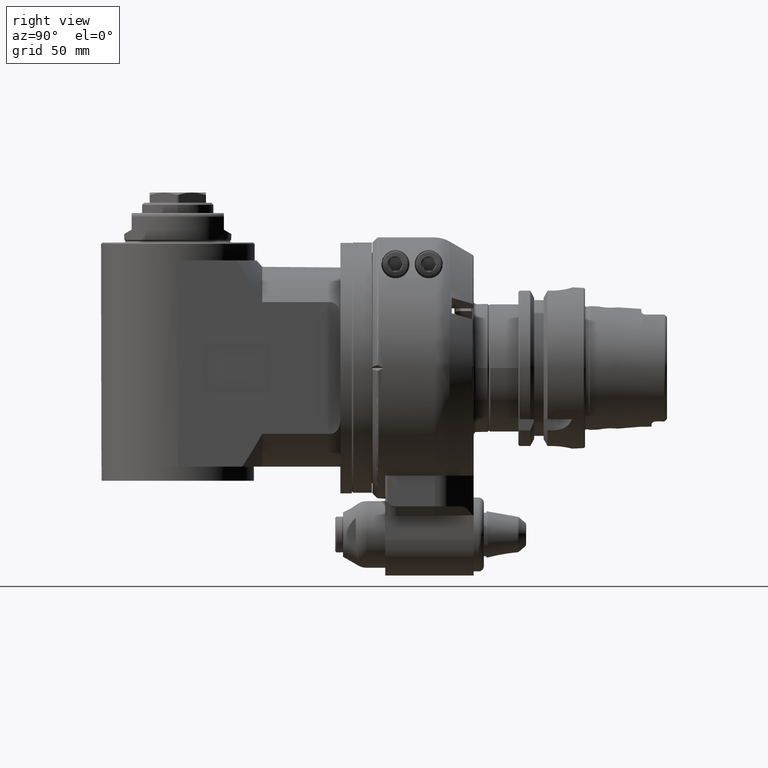
[diagram: clean part render]
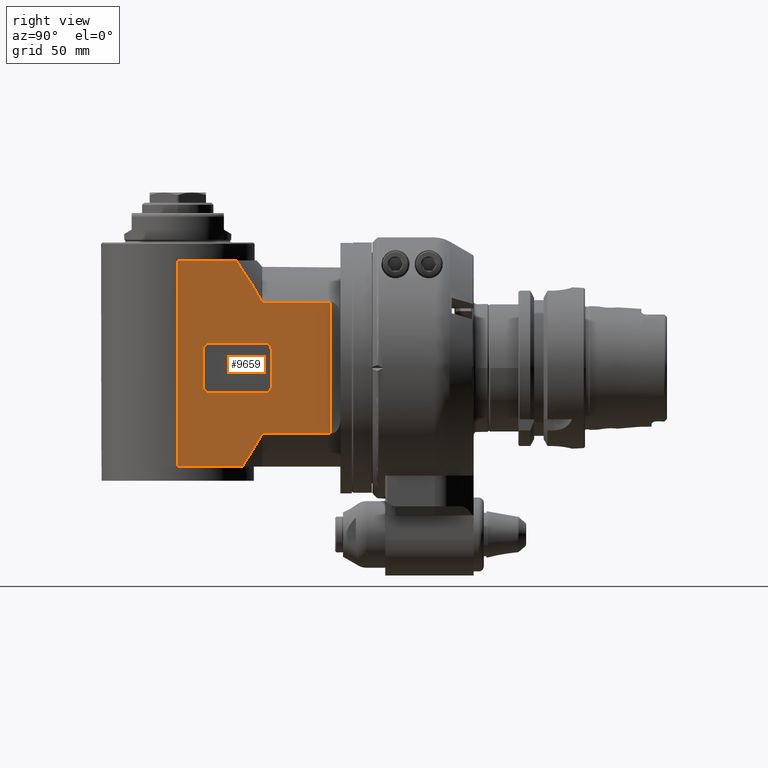
[diagram: same view with one face highlighted and labeled with its STEP entity id]
A machine part, right view. The second image highlights one B-rep face of the part: STEP entity #9659.
In plain terms, the highlighted planar face has unit normal (-1, -0, 0).
Its self-contained STEP definition (entity closure, byte-faithful):
#368=FACE_BOUND('',#1387,.T.);
#446=(
BOUNDED_CURVE()
B_SPLINE_CURVE(2,(#14597,#14598,#14599),.UNSPECIFIED.,.F.,.F.)
B_SPLINE_CURVE_WITH_KNOTS((3,3),(13.1968686512931,14.6987267010382),
 .UNSPECIFIED.)
CURVE()
GEOMETRIC_REPRESENTATION_ITEM()
RATIONAL_B_SPLINE_CURVE((1.58301614602027,1.50247047399681,1.39604108041358))
REPRESENTATION_ITEM('')
);
#447=(
BOUNDED_CURVE()
B_SPLINE_CURVE(2,(#14607,#14608,#14609),.UNSPECIFIED.,.F.,.F.)
B_SPLINE_CURVE_WITH_KNOTS((3,3),(2.01815760786574,3.84982281623074),
 .UNSPECIFIED.)
CURVE()
GEOMETRIC_REPRESENTATION_ITEM()
RATIONAL_B_SPLINE_CURVE((1.34804919977888,1.4847826910311,1.58301614602027))
REPRESENTATION_ITEM('')
);
#501=PLANE('',#10318);
#789=FACE_OUTER_BOUND('',#1386,.T.);
#1386=EDGE_LOOP('',(#6505,#6506,#6507,#6508,#6509,#6510,#6511,#6512));
#1387=EDGE_LOOP('',(#6513,#6514,#6515,#6516,#6517,#6518,#6519,#6520));
#2062=LINE('',#14591,#2760);
#2063=LINE('',#14595,#2761);
#2064=LINE('',#14601,#2762);
#2065=LINE('',#14603,#2763);
#2066=LINE('',#14605,#2764);
#2067=LINE('',#14610,#2765);
#2068=LINE('',#14613,#2766);
#2069=LINE('',#14617,#2767);
#2070=LINE('',#14621,#2768);
#2071=LINE('',#14625,#2769);
#2760=VECTOR('',#11515,80.5);
#2761=VECTOR('',#11520,25.18941018294);
#2762=VECTOR('',#11521,26.5);
#2763=VECTOR('',#11522,51.39066063012);
#2764=VECTOR('',#11523,26.5);
#2765=VECTOR('',#11524,22.83518767845);
#2766=VECTOR('',#11525,21.5);
#2767=VECTOR('',#11528,14.5);
#2768=VECTOR('',#11531,21.5);
#2769=VECTOR('',#11534,14.5);
#3461=CIRCLE('',#10319,2.5);
#3462=CIRCLE('',#10320,2.5);
#3463=CIRCLE('',#10321,2.5);
#3464=CIRCLE('',#10322,2.5);
#4026=VERTEX_POINT('',#14588);
#4027=VERTEX_POINT('',#14590);
#4028=VERTEX_POINT('',#14594);
#4029=VERTEX_POINT('',#14596);
#4030=VERTEX_POINT('',#14600);
#4031=VERTEX_POINT('',#14602);
#4032=VERTEX_POINT('',#14604);
#4033=VERTEX_POINT('',#14606);
#4034=VERTEX_POINT('',#14611);
#4035=VERTEX_POINT('',#14612);
#4036=VERTEX_POINT('',#14614);
#4037=VERTEX_POINT('',#14616);
#4038=VERTEX_POINT('',#14618);
#4039=VERTEX_POINT('',#14620);
#4040=VERTEX_POINT('',#14622);
#4041=VERTEX_POINT('',#14624);
#5000=EDGE_CURVE('',#4027,#4026,#2062,.T.);
#5002=EDGE_CURVE('',#4028,#4026,#2063,.T.);
#5003=EDGE_CURVE('',#4029,#4028,#446,.T.);
#5004=EDGE_CURVE('',#4030,#4029,#2064,.T.);
#5005=EDGE_CURVE('',#4031,#4030,#2065,.T.);
#5006=EDGE_CURVE('',#4032,#4031,#2066,.T.);
#5007=EDGE_CURVE('',#4033,#4032,#447,.T.);
#5008=EDGE_CURVE('',#4027,#4033,#2067,.T.);
#5009=EDGE_CURVE('',#4034,#4035,#2068,.T.);
#5010=EDGE_CURVE('',#4035,#4036,#3461,.T.);
#5011=EDGE_CURVE('',#4036,#4037,#2069,.T.);
#5012=EDGE_CURVE('',#4037,#4038,#3462,.T.);
#5013=EDGE_CURVE('',#4038,#4039,#2070,.T.);
#5014=EDGE_CURVE('',#4039,#4040,#3463,.T.);
#5015=EDGE_CURVE('',#4040,#4041,#2071,.T.);
#5016=EDGE_CURVE('',#4041,#4034,#3464,.T.);
#6505=ORIENTED_EDGE('',*,*,#5000,.T.);
#6506=ORIENTED_EDGE('',*,*,#5002,.F.);
#6507=ORIENTED_EDGE('',*,*,#5003,.F.);
#6508=ORIENTED_EDGE('',*,*,#5004,.F.);
#6509=ORIENTED_EDGE('',*,*,#5005,.F.);
#6510=ORIENTED_EDGE('',*,*,#5006,.F.);
#6511=ORIENTED_EDGE('',*,*,#5007,.F.);
#6512=ORIENTED_EDGE('',*,*,#5008,.F.);
#6513=ORIENTED_EDGE('',*,*,#5009,.T.);
#6514=ORIENTED_EDGE('',*,*,#5010,.T.);
#6515=ORIENTED_EDGE('',*,*,#5011,.T.);
#6516=ORIENTED_EDGE('',*,*,#5012,.T.);
#6517=ORIENTED_EDGE('',*,*,#5013,.T.);
#6518=ORIENTED_EDGE('',*,*,#5014,.T.);
#6519=ORIENTED_EDGE('',*,*,#5015,.T.);
#6520=ORIENTED_EDGE('',*,*,#5016,.T.);
#9659=ADVANCED_FACE('',(#789,#368),#501,.F.);
#10318=AXIS2_PLACEMENT_3D('',#14593,#11518,#11519);
#10319=AXIS2_PLACEMENT_3D('',#14615,#11526,#11527);
#10320=AXIS2_PLACEMENT_3D('',#14619,#11529,#11530);
#10321=AXIS2_PLACEMENT_3D('',#14623,#11532,#11533);
#10322=AXIS2_PLACEMENT_3D('',#14626,#11535,#11536);
#11515=DIRECTION('',(-1.,0.,0.));
#11518=DIRECTION('center_axis',(0.,0.,1.));
#11519=DIRECTION('ref_axis',(0.,1.,0.));
#11520=DIRECTION('',(5.641598835382E-13,-1.,-1.008435791825E-13));
#11521=DIRECTION('',(0.,-1.,0.));
#11522=DIRECTION('',(-1.,0.,0.));
#11523=DIRECTION('',(0.,1.,0.));
#11524=DIRECTION('',(0.,1.,0.));
#11525=DIRECTION('',(0.,-1.,0.));
#11526=DIRECTION('center_axis',(0.,0.,1.));
#11527=DIRECTION('ref_axis',(-1.,0.,0.));
#11528=DIRECTION('',(1.,0.,0.));
#11529=DIRECTION('center_axis',(0.,0.,1.));
#11530=DIRECTION('ref_axis',(0.,-1.,0.));
#11531=DIRECTION('',(0.,1.,0.));
#11532=DIRECTION('center_axis',(0.,0.,1.));
#11533=DIRECTION('ref_axis',(1.,0.,0.));
#11534=DIRECTION('',(-1.,0.,0.));
#11535=DIRECTION('center_axis',(0.,0.,1.));
#11536=DIRECTION('ref_axis',(0.,1.,0.));
#14588=CARTESIAN_POINT('',(-49.33995821208,-23.,-30.));
#14590=CARTESIAN_POINT('',(31.16004178792,-23.,-30.));
#14591=CARTESIAN_POINT('',(31.16004178792,-23.,-30.));
#14593=CARTESIAN_POINT('Origin',(-72.98996061208,-61.31824583655,-30.));
#14594=CARTESIAN_POINT('',(-49.3399582121,2.189410182937,-30.));
#14595=CARTESIAN_POINT('',(-49.3399582121,2.189410182937,-30.));
#14596=CARTESIAN_POINT('',(-36.53528852714,10.,-30.));
#14597=CARTESIAN_POINT('Ctrl Pts',(-36.5352885269419,10.0000000001097,-30.));
#14598=CARTESIAN_POINT('Ctrl Pts',(-42.2627735005714,6.87367158461736,-30.));
#14599=CARTESIAN_POINT('Ctrl Pts',(-49.3399582120473,2.18941018297527,-30.));
#14600=CARTESIAN_POINT('',(-36.53528852714,36.5,-30.));
#14601=CARTESIAN_POINT('',(-36.53528852714,36.5,-30.));
#14602=CARTESIAN_POINT('',(14.85537210298,36.5,-30.));
#14603=CARTESIAN_POINT('',(14.85537210298,36.5,-30.));
#14604=CARTESIAN_POINT('',(14.85537210298,10.,-30.));
#14605=CARTESIAN_POINT('',(14.85537210298,10.,-30.));
#14606=CARTESIAN_POINT('',(31.16004178792,-0.164812321552,-30.));
#14607=CARTESIAN_POINT('Ctrl Pts',(31.1600417879129,-0.164812321545516,
-30.));
#14608=CARTESIAN_POINT('Ctrl Pts',(21.9238225567032,6.14171008589093,-30.));
#14609=CARTESIAN_POINT('Ctrl Pts',(14.8553721027819,10.0000000001096,-30.));
#14610=CARTESIAN_POINT('',(31.16004178792,-23.,-30.));
#14611=CARTESIAN_POINT('',(-20.58995821208,11.,-30.));
#14612=CARTESIAN_POINT('',(-20.58995821208,-10.5,-30.));
#14613=CARTESIAN_POINT('',(-20.58995821208,11.,-30.));
#14614=CARTESIAN_POINT('',(-18.08995821208,-13.,-30.));
#14615=CARTESIAN_POINT('Origin',(-18.08995821208,-10.5,-30.));
#14616=CARTESIAN_POINT('',(-3.589958212082,-13.,-30.));
#14617=CARTESIAN_POINT('',(-18.08995821208,-13.,-30.));
#14618=CARTESIAN_POINT('',(-1.089958212082,-10.5,-30.));
#14619=CARTESIAN_POINT('Origin',(-3.589958212082,-10.5,-30.));
#14620=CARTESIAN_POINT('',(-1.089958212082,11.,-30.));
#14621=CARTESIAN_POINT('',(-1.089958212082,-10.5,-30.));
#14622=CARTESIAN_POINT('',(-3.589958212082,13.5,-30.));
#14623=CARTESIAN_POINT('Origin',(-3.589958212082,11.,-30.));
#14624=CARTESIAN_POINT('',(-18.08995821208,13.5,-30.));
#14625=CARTESIAN_POINT('',(-3.589958212082,13.5,-30.));
#14626=CARTESIAN_POINT('Origin',(-18.08995821208,11.,-30.));